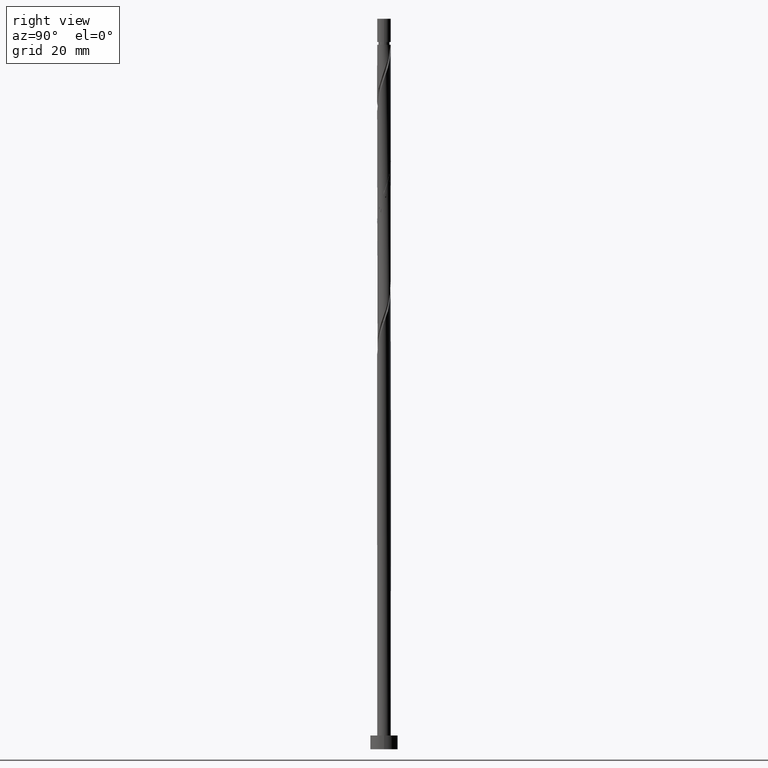
[diagram: clean part render]
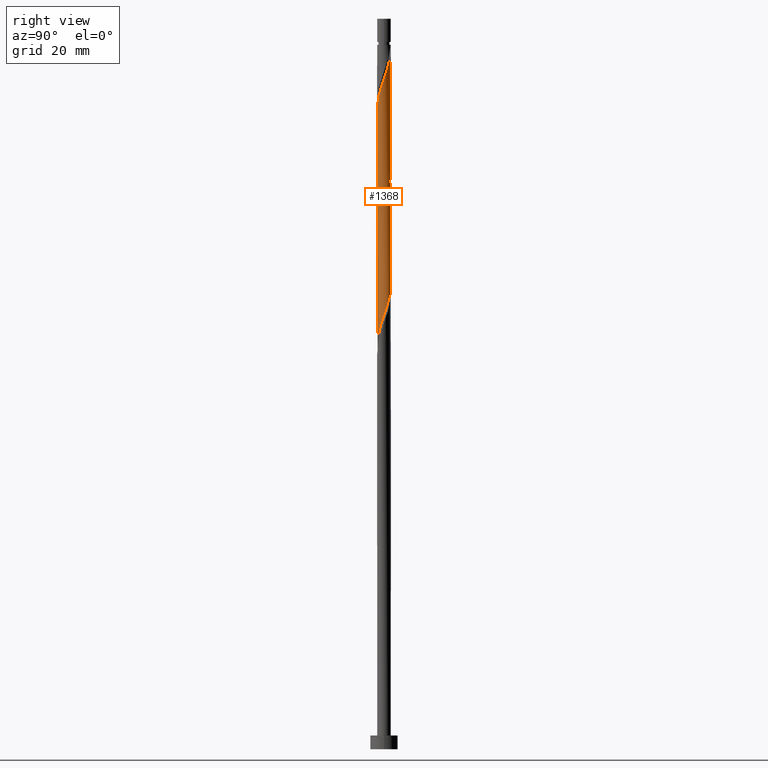
[diagram: same view with one face highlighted and labeled with its STEP entity id]
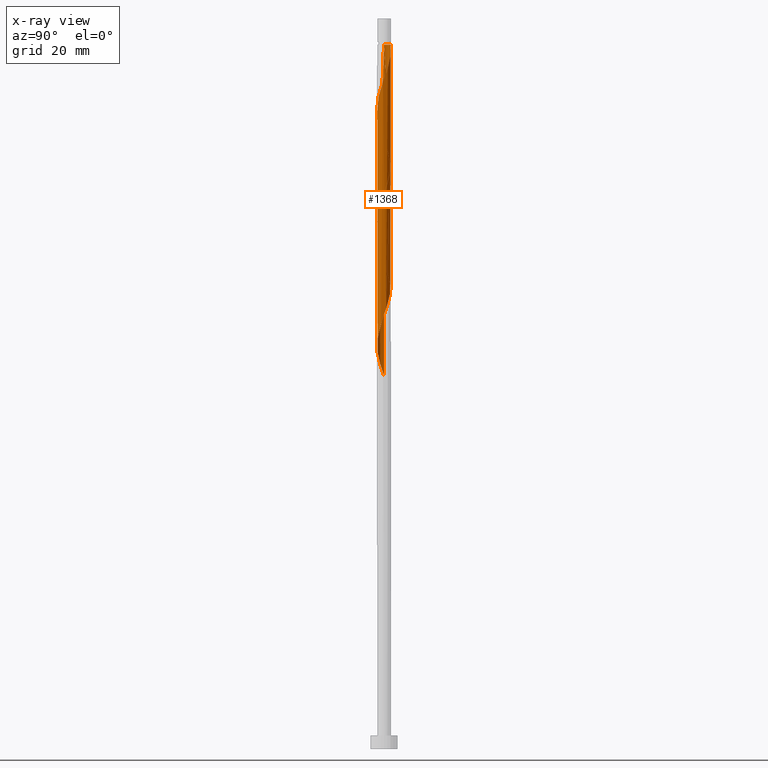
[diagram: x-ray of the same camera — body ghosted, the highlighted face saturated]
A machine part, right view. The second image highlights one B-rep face of the part: STEP entity #1368.
The next image is the same camera in x-ray: the body ghosted, the highlighted face saturated — about 0% of this face is hidden behind the body in this view.
In plain terms, the highlighted cylindrical surface (bore or boss wall) has radius 1.5 mm, axis along (-0, -0, -1).
Its self-contained STEP definition (entity closure, byte-faithful):
#6 = CARTESIAN_POINT ( 'NONE',  ( 1.306425335299755464, -0.7370568792752213438, 144.6169680509343891 ) ) ;
#25 = CARTESIAN_POINT ( 'NONE',  ( -0.5436309926831534023, -1.398021939668451008, 138.5563619903283268 ) ) ;
#39 = CARTESIAN_POINT ( 'NONE',  ( 0.1277418221353521510, 1.494550777617658754, 153.1018165357828309 ) ) ;
#44 = CARTESIAN_POINT ( 'NONE',  ( 0.000000000000000000, 0.000000000000000000, 160.0000000000000000 ) ) ;
#52 = CARTESIAN_POINT ( 'NONE',  ( 0.3426257832300796946, 1.476184276359228109, 152.4957559297222360 ) ) ;
#58 = FACE_OUTER_BOUND ( 'NONE', #276, .T. ) ;
#60 = CARTESIAN_POINT ( 'NONE',  ( -1.485116343010913109, 0.3015657354974668469, 134.3139377479041343 ) ) ;
#64 = VECTOR ( 'NONE', #248, 1000.000000000000000 ) ;
#86 = VECTOR ( 'NONE', #1399, 1000.000000000000000 ) ;
#89 = CARTESIAN_POINT ( 'NONE',  ( -0.08714213895937615584, -1.512917278876086735, 114.9199983539646723 ) ) ;
#96 = CARTESIAN_POINT ( 'NONE',  ( 0.8912534666523063143, 1.225634408494018723, 99.16242259638896428 ) ) ;
#100 = DIRECTION ( 'NONE',  ( -1.000000000000000000, 0.000000000000000000, 0.000000000000000000 ) ) ;
#107 = CARTESIAN_POINT ( 'NONE',  ( -0.9154784133017651593, 1.188233678523918035, 104.6169680509343465 ) ) ;
#132 = CARTESIAN_POINT ( 'NONE',  ( 0.9154784133017650483, -1.188233678523918035, 91.28363471760103209 ) ) ;
#155 = CARTESIAN_POINT ( 'NONE',  ( 0.7005518949784523830, -1.326358564808968632, 142.1927256266919528 ) ) ;
#163 = CARTESIAN_POINT ( 'NONE',  ( 0.08714213895937576726, 1.512917278876086069, 128.2533316872980151 ) ) ;
#166 = ORIENTED_EDGE ( 'NONE', *, *, #981, .T. ) ;
#170 = CARTESIAN_POINT ( 'NONE',  ( -1.500000000000000000, -3.440068761804149870E-16, 135.1633922272049517 ) ) ;
#183 = CARTESIAN_POINT ( 'NONE',  ( -0.2984962311320397688, 1.470000000000533991, 154.3139377479040775 ) ) ;
#197 = CARTESIAN_POINT ( 'NONE',  ( 0.7446362021362249450, -1.319859602977671020, 90.67757411154046565 ) ) ;
#201 = CARTESIAN_POINT ( 'NONE',  ( -1.306425335299753243, -0.7370568792752196785, 110.6775741115404372 ) ) ;
#221 = CARTESIAN_POINT ( 'NONE',  ( 1.497517962423704718, -0.08625515763335836472, 94.91999835396468654 ) ) ;
#224 = CARTESIAN_POINT ( 'NONE',  ( -1.500000000000000222, -0.1717933910776853201, 82.31601884684295101 ) ) ;
#228 = ORIENTED_EDGE ( 'NONE', *, *, #820, .T. ) ;
#229 = CARTESIAN_POINT ( 'NONE',  ( 1.485116343010913109, -0.3015657354974669579, 120.9806044145707773 ) ) ;
#236 = VERTEX_POINT ( 'NONE', #1483 ) ;
#248 = DIRECTION ( 'NONE',  ( -0.000000000000000000, -0.000000000000000000, -1.000000000000000000 ) ) ;
#250 = CARTESIAN_POINT ( 'NONE',  ( 0.5098503233045976746, -1.427082721123916320, 141.5866650206313579 ) ) ;
#255 = CARTESIAN_POINT ( 'NONE',  ( -1.500000000000002442, 7.702762662300539942E-16, 133.4644832686032032 ) ) ;
#261 = CARTESIAN_POINT ( 'NONE',  ( -1.086320624467308038, -1.056607754070166383, 136.7381801721464853 ) ) ;
#272 = CARTESIAN_POINT ( 'NONE',  ( -0.08714213895938177634, 1.512917278876088512, 153.7078771418435110 ) ) ;
#276 = EDGE_LOOP ( 'NONE', ( #453, #570, #1027, #166, #1296, #1345, #228, #1337 ) ) ;
#289 = CARTESIAN_POINT ( 'NONE',  ( -1.339997810401561518, 0.7077558288161657218, 133.1018165357828877 ) ) ;
#296 = CARTESIAN_POINT ( 'NONE',  ( -1.086320624467306040, 1.056607754070165717, 131.8896953236616696 ) ) ;
#323 = VERTEX_POINT ( 'NONE', #752 ) ;
#324 = CARTESIAN_POINT ( 'NONE',  ( -1.412557076706236980, 0.5046607821568160901, 107.0412104751767828 ) ) ;
#334 = CARTESIAN_POINT ( 'NONE',  ( 0.2984962311319868666, 1.469999999999999751, 100.9806044145707347 ) ) ;
#342 = CARTESIAN_POINT ( 'NONE',  ( 1.086320624467306484, -1.056607754070165273, 91.88969532366166959 ) ) ;
#349 = EDGE_CURVE ( 'NONE', #414, #996, #1243, .T. ) ;
#353 = CARTESIAN_POINT ( 'NONE',  ( 1.412557076706236980, -0.5046607821568163121, 120.3745438085101398 ) ) ;
#356 = CARTESIAN_POINT ( 'NONE',  ( 0.5436309926831520700, -1.398021939668448566, 90.07151350547979973 ) ) ;
#359 = CARTESIAN_POINT ( 'NONE',  ( 1.412557076706239645, 0.5046607821568165342, 148.2533316872980436 ) ) ;
#387 = CARTESIAN_POINT ( 'NONE',  ( 1.045853010636306202, -1.075263446855226235, 143.4048468388131994 ) ) ;
#401 = CARTESIAN_POINT ( 'NONE',  ( -0.7446362021362251671, 1.319859602977671020, 130.6775741115404514 ) ) ;
#414 = VERTEX_POINT ( 'NONE', #530 ) ;
#422 = DIRECTION ( 'NONE',  ( -0.000000000000000000, -0.000000000000000000, -1.000000000000000000 ) ) ;
#425 = CARTESIAN_POINT ( 'NONE',  ( 1.045853010636304870, 1.075263446855224236, 125.2230286569949698 ) ) ;
#437 = CARTESIAN_POINT ( 'NONE',  ( 0.7446362021362249450, -1.319859602977671020, 117.3442407782070944 ) ) ;
#445 = CARTESIAN_POINT ( 'NONE',  ( -0.2984962311319866446, -1.469999999999999751, 114.3139377479040633 ) ) ;
#453 = ORIENTED_EDGE ( 'NONE', *, *, #1319, .F. ) ;
#456 = CARTESIAN_POINT ( 'NONE',  ( -0.3426257832300788064, 1.476184276359225889, 102.7987862327525761 ) ) ;
#466 = CARTESIAN_POINT ( 'NONE',  ( 1.213159217434433890, -0.8821817914431652197, 92.49575592972223603 ) ) ;
#474 = CARTESIAN_POINT ( 'NONE',  ( 1.200452554620303536, 0.9248924852164295274, 97.95030138426773192 ) ) ;
#477 = CARTESIAN_POINT ( 'NONE',  ( -1.500000000000000222, 0.000000000000000000, 160.0000000000000000 ) ) ;
#479 = EDGE_CURVE ( 'NONE', #1388, #1182, #496, .T. ) ;
#481 = CARTESIAN_POINT ( 'NONE',  ( 1.461158848907852859, -0.3391383467823813058, 145.8290892630556357 ) ) ;
#496 =( BOUNDED_CURVE ( )  B_SPLINE_CURVE ( 2, ( #170, #1342, #1491, #60, #1497, #289, #1122, #296, #522, #401, #750, #999, #1482, #163, #767, #880, #891, #1370, #425, #1349, #897, #640, #1008, #648, #538 ),
 .UNSPECIFIED., .F., .T. ) 
 B_SPLINE_CURVE_WITH_KNOTS ( ( 3, 2, 2, 2, 2, 2, 2, 2, 2, 2, 2, 2, 3 ),
 ( 0.4295252162417516617, 0.4318181818181818232, 0.4431818181818181768, 0.4545454545454545303, 0.4659090909090908839, 0.4772727272727272929, 0.4886363636363636465, 0.5000000000000000000, 0.5113636363636363535, 0.5227272727272727071, 0.5340909090909090606, 0.5454545454545454142, 0.5545252162417515507 ),
 .UNSPECIFIED. ) 
 CURVE ( )  GEOMETRIC_REPRESENTATION_ITEM ( )  RATIONAL_B_SPLINE_CURVE ( ( 0.9061101570135673411, 0.9072237824201495604, 0.9090909090909268242, 0.8998376744372288405, 0.9090909090909268242, 0.8998376744372288405, 0.9090909090909268242, 0.8998376744372288405, 0.9090909090909268242, 0.8998376744372288405, 0.9090909090909268242, 0.8998376744372288405, 0.9090909090909268242, 0.8998376744372288405, 0.9090909090909268242, 0.8998376744372288405, 0.9090909090909268242, 0.8998376744372288405, 0.9090909090909268242, 0.8998376744372288405, 0.9090909090909268242, 0.8998376744372288405, 0.9090909090909268242, 0.9017048011080062153, 0.9061101570135673411 ) ) 
 REPRESENTATION_ITEM ( '' )  );
#500 = CARTESIAN_POINT ( 'NONE',  ( -0.1277418221353519845, -1.494550777617658754, 139.7684832024494881 ) ) ;
#510 = CARTESIAN_POINT ( 'NONE',  ( -1.500000000000002442, -0.04316328978573490127, 133.5865812733214000 ) ) ;
#522 = CARTESIAN_POINT ( 'NONE',  ( -0.9154784133017651593, 1.188233678523918035, 131.2836347176010463 ) ) ;
#530 = CARTESIAN_POINT ( 'NONE',  ( -1.500000000000002442, 7.702762662300539942E-16, 133.4644832686032032 ) ) ;
#538 = CARTESIAN_POINT ( 'NONE',  ( 1.499999999999999778, 2.131346950248223336E-15, 121.8300588938716089 ) ) ;
#564 = CARTESIAN_POINT ( 'NONE',  ( -1.200452554620303758, -0.9248924852164293053, 111.2836347176010605 ) ) ;
#570 = ORIENTED_EDGE ( 'NONE', *, *, #1211, .T. ) ;
#579 = CARTESIAN_POINT ( 'NONE',  ( 1.339997810401561518, -0.7077558288161656108, 93.10181653578287353 ) ) ;
#585 = AXIS2_PLACEMENT_3D ( 'NONE', #687, #1170, #100 ) ;
#589 = CARTESIAN_POINT ( 'NONE',  ( -0.5098503233045974525, -1.427082721123913878, 113.7078771418434968 ) ) ;
#593 = LINE ( 'NONE', #477, #1110 ) ;
#640 = CARTESIAN_POINT ( 'NONE',  ( 1.412398115979204061, 0.5492212733340094966, 123.4048468388131568 ) ) ;
#648 = CARTESIAN_POINT ( 'NONE',  ( 1.500000000000001332, 0.1717933910776786310, 122.3160188468429226 ) ) ;
#671 = CARTESIAN_POINT ( 'NONE',  ( -1.461158848907849972, -0.3391383467823803621, 82.79878623275254768 ) ) ;
#679 = CARTESIAN_POINT ( 'NONE',  ( 1.499999999999999778, 2.131346950248223336E-15, 121.8300588938716089 ) ) ;
#683 = CARTESIAN_POINT ( 'NONE',  ( 1.213159217434433890, -0.8821817914431652197, 119.1624225963889074 ) ) ;
#687 = CARTESIAN_POINT ( 'NONE',  ( 0.000000000000000000, 0.000000000000000000, 154.3139377479040775 ) ) ;
#692 = CARTESIAN_POINT ( 'NONE',  ( 1.412557076706236980, -0.5046607821568163121, 93.70787714184346839 ) ) ;
#703 = CARTESIAN_POINT ( 'NONE',  ( -1.045853010636305314, -1.075263446855223792, 111.8896953236616554 ) ) ;
#720 = CARTESIAN_POINT ( 'NONE',  ( -0.2984962311320397688, 1.470000000000533991, 154.3139377479040775 ) ) ;
#723 = CARTESIAN_POINT ( 'NONE',  ( 1.412398115979206503, -0.5492212733340109398, 145.2230286569949840 ) ) ;
#728 = CARTESIAN_POINT ( 'NONE',  ( -1.497517962423707383, -0.08625515763335786512, 133.7078771418434826 ) ) ;
#735 = CARTESIAN_POINT ( 'NONE',  ( 0.2984962311319867556, -1.470000000000002416, 140.9806044145707915 ) ) ;
#747 =( BOUNDED_CURVE ( )  B_SPLINE_CURVE ( 2, ( #1436, #1186, #796, #229, #353, #1273, #683, #1290, #1507, #437, #916, #1389, #1535, #89, #445, #589, #804, #932, #703, #564, #201, #1044, #1298, #1516, #924, #1396, #324, #1183, #1525, #1425, #107, #1071, #945, #456, #1062, #1281, #334, #1543, #1166, #96, #1053, #474, #1405, #1416, #832, #814, #221, #953, #692, #579, #466, #342, #132, #197, #356, #920, #1066, #1153, #1301, #1162, #1400, #809, #800, #1269, #1041, #1293, #671, #224, #827 ),
 .UNSPECIFIED., .F., .T. ) 
 B_SPLINE_CURVE_WITH_KNOTS ( ( 3, 2, 2, 2, 2, 2, 2, 2, 2, 2, 2, 2, 2, 2, 2, 2, 2, 2, 2, 2, 2, 2, 2, 2, 2, 2, 2, 2, 2, 2, 2, 2, 2, 2, 3 ),
 ( 0.5545252162417515507, 0.5568181818181817677, 0.5681818181818182323, 0.5795454545454545858, 0.5909090909090909394, 0.6022727272727272929, 0.6136363636363636465, 0.6250000000000000000, 0.6363636363636363535, 0.6477272727272727071, 0.6590909090909090606, 0.6704545454545454142, 0.6818181818181817677, 0.6931818181818182323, 0.7045454545454545858, 0.7159090909090909394, 0.7272727272727272929, 0.7386363636363636465, 0.7500000000000000000, 0.7613636363636363535, 0.7727272727272727071, 0.7840909090909090606, 0.7954545454545454142, 0.8068181818181817677, 0.8181818181818182323, 0.8295454545454545858, 0.8409090909090909394, 0.8522727272727272929, 0.8636363636363636465, 0.8750000000000000000, 0.8863636363636363535, 0.8977272727272727071, 0.9090909090909090606, 0.9204545454545454142, 0.9295252162417512176 ),
 .UNSPECIFIED. ) 
 CURVE ( )  GEOMETRIC_REPRESENTATION_ITEM ( )  RATIONAL_B_SPLINE_CURVE ( ( 0.9061101570135673411, 0.9072237824201494494, 0.9090909090909268242, 0.8998376744372288405, 0.9090909090909268242, 0.8998376744372288405, 0.9090909090909268242, 0.8998376744372288405, 0.9090909090909268242, 0.8998376744372288405, 0.9090909090909268242, 0.8998376744372288405, 0.9090909090909268242, 0.8998376744372288405, 0.9090909090909268242, 0.8998376744372288405, 0.9090909090909268242, 0.8998376744372288405, 0.9090909090909268242, 0.8998376744372288405, 0.9090909090909268242, 0.8998376744372288405, 0.9090909090909268242, 0.8998376744372288405, 0.9090909090909268242, 0.8998376744372288405, 0.9090909090909268242, 0.8998376744372288405, 0.9090909090909268242, 0.8998376744372288405, 0.9090909090909268242, 0.8998376744372288405, 0.9090909090909268242, 0.8998376744372288405, 0.9090909090909268242, 0.8998376744372288405, 0.9090909090909268242, 0.8998376744372288405, 0.9090909090909268242, 0.8998376744372288405, 0.9090909090909268242, 0.8998376744372288405, 0.9090909090909268242, 0.8998376744372288405, 0.9090909090909268242, 0.8998376744372288405, 0.9090909090909268242, 0.8998376744372288405, 0.9090909090909268242, 0.8998376744372288405, 0.9090909090909268242, 0.8998376744372288405, 0.9090909090909268242, 0.8998376744372288405, 0.9090909090909268242, 0.8998376744372288405, 0.9090909090909268242, 0.8998376744372288405, 0.9090909090909268242, 0.8998376744372288405, 0.9090909090909268242, 0.8998376744372288405, 0.9090909090909268242, 0.8998376744372288405, 0.9090909090909268242, 0.8998376744372288405, 0.9090909090909268242, 0.9017048011080064374, 0.9061101570135670080 ) ) 
 REPRESENTATION_ITEM ( '' )  );
#750 = CARTESIAN_POINT ( 'NONE',  ( -0.5436309926831520700, 1.398021939668448566, 130.0715135054798282 ) ) ;
#752 = CARTESIAN_POINT ( 'NONE',  ( 1.500000000000000222, 1.836970198721030181E-16, 154.3139377479040775 ) ) ;
#759 = CARTESIAN_POINT ( 'NONE',  ( 1.339997810401563738, 0.7077558288161661659, 148.8593922933585532 ) ) ;
#764 = DIRECTION ( 'NONE',  ( -1.000000000000000000, 0.000000000000000000, 0.000000000000000000 ) ) ;
#767 = CARTESIAN_POINT ( 'NONE',  ( 0.2984962311319868666, 1.469999999999999751, 127.6472710812373776 ) ) ;
#796 = CARTESIAN_POINT ( 'NONE',  ( 1.497517962423704718, -0.08625515763335836472, 121.5866650206313437 ) ) ;
#800 = CARTESIAN_POINT ( 'NONE',  ( -1.045853010636305314, -1.075263446855223792, 85.22302865699496977 ) ) ;
#803 = VERTEX_POINT ( 'NONE', #1047 ) ;
#804 = CARTESIAN_POINT ( 'NONE',  ( -0.7005518949784516058, -1.326358564808965745, 113.1018165357828167 ) ) ;
#809 = CARTESIAN_POINT ( 'NONE',  ( -0.8912534666523063143, -1.225634408494019167, 85.82908926305560726 ) ) ;
#814 = CARTESIAN_POINT ( 'NONE',  ( 1.509919581836496993, 0.1290554202307504228, 95.52605896002533825 ) ) ;
#820 = EDGE_CURVE ( 'NONE', #323, #1182, #927, .T. ) ;
#827 = CARTESIAN_POINT ( 'NONE',  ( -1.500000000000000444, 1.757426432660816093E-15, 81.83005889387165155 ) ) ;
#832 = CARTESIAN_POINT ( 'NONE',  ( 1.461158848907850416, 0.3391383467823799180, 96.13211956608589048 ) ) ;
#843 = CARTESIAN_POINT ( 'NONE',  ( -1.213159217434436110, -0.8821817914431666630, 136.1321195660859189 ) ) ;
#864 = CARTESIAN_POINT ( 'NONE',  ( 1.200452554620305756, -0.9248924852164310817, 144.0109074448737658 ) ) ;
#870 = CYLINDRICAL_SURFACE ( 'NONE', #1159, 1.500000000000000222 ) ;
#880 = CARTESIAN_POINT ( 'NONE',  ( 0.5098503233045974525, 1.427082721123913878, 127.0412104751767828 ) ) ;
#891 = CARTESIAN_POINT ( 'NONE',  ( 0.7005518949784517169, 1.326358564808965745, 126.4351498691161595 ) ) ;
#897 = CARTESIAN_POINT ( 'NONE',  ( 1.306425335299753243, 0.7370568792752199005, 124.0109074448737516 ) ) ;
#909 = CIRCLE ( 'NONE', #585, 1.499999999999993561 ) ;
#916 = CARTESIAN_POINT ( 'NONE',  ( 0.5436309926831520700, -1.398021939668448566, 116.7381801721464996 ) ) ;
#920 = CARTESIAN_POINT ( 'NONE',  ( 0.3426257832300790840, -1.476184276359225667, 89.46545289941923329 ) ) ;
#924 = CARTESIAN_POINT ( 'NONE',  ( -1.497517962423704718, 0.08625515763335817043, 108.2533316872980009 ) ) ;
#927 = LINE ( 'NONE', #1519, #86 ) ;
#932 = CARTESIAN_POINT ( 'NONE',  ( -0.8912534666523063143, -1.225634408494019167, 112.4957559297222929 ) ) ;
#945 = CARTESIAN_POINT ( 'NONE',  ( -0.5436309926831520700, 1.398021939668448566, 103.4048468388131852 ) ) ;
#953 = CARTESIAN_POINT ( 'NONE',  ( 1.485116343010913109, -0.3015657354974669579, 94.31393774790410589 ) ) ;
#955 = CARTESIAN_POINT ( 'NONE',  ( -1.500000000000000222, 0.000000000000000000, 160.0000000000000000 ) ) ;
#956 = DIRECTION ( 'NONE',  ( -0.000000000000000000, -0.000000000000000000, -1.000000000000000000 ) ) ;
#959 = CARTESIAN_POINT ( 'NONE',  ( 1.497517962423707383, 0.08625515763335768471, 147.0412104751768254 ) ) ;
#981 = EDGE_CURVE ( 'NONE', #414, #803, #1080, .T. ) ;
#984 = CARTESIAN_POINT ( 'NONE',  ( -1.485116343010915330, -0.3015657354974669024, 134.3139377479041059 ) ) ;
#996 = VERTEX_POINT ( 'NONE', #720 ) ;
#999 = CARTESIAN_POINT ( 'NONE',  ( -0.3426257832300788064, 1.476184276359225889, 129.4654528994192333 ) ) ;
#1008 = CARTESIAN_POINT ( 'NONE',  ( 1.461158848907850416, 0.3391383467823799180, 122.7987862327525477 ) ) ;
#1015 = CARTESIAN_POINT ( 'NONE',  ( -1.500000000000000000, -3.440068761804149870E-16, 135.1633922272049517 ) ) ;
#1024 = CARTESIAN_POINT ( 'NONE',  ( 0.7446362021362260553, 1.319859602977673019, 151.2836347176010179 ) ) ;
#1027 = ORIENTED_EDGE ( 'NONE', *, *, #349, .F. ) ;
#1029 = EDGE_CURVE ( 'NONE', #1182, #803, #747, .T. ) ;
#1041 = CARTESIAN_POINT ( 'NONE',  ( -1.306425335299753243, -0.7370568792752196785, 84.01090744487376583 ) ) ;
#1044 = CARTESIAN_POINT ( 'NONE',  ( -1.412398115979203617, -0.5492212733340102737, 110.0715135054798282 ) ) ;
#1047 = CARTESIAN_POINT ( 'NONE',  ( -1.500000000000000444, 1.757426432660816093E-15, 81.83005889387165155 ) ) ;
#1053 = CARTESIAN_POINT ( 'NONE',  ( 1.045853010636304870, 1.075263446855224236, 98.55636199032831257 ) ) ;
#1062 = CARTESIAN_POINT ( 'NONE',  ( -0.1277418221353515404, 1.494550777617655868, 102.1927256266919386 ) ) ;
#1066 = CARTESIAN_POINT ( 'NONE',  ( 0.1277418221353510408, -1.494550777617655868, 88.85939229335861000 ) ) ;
#1071 = CARTESIAN_POINT ( 'NONE',  ( -0.7446362021362251671, 1.319859602977671020, 104.0109074448738085 ) ) ;
#1080 = LINE ( 'NONE', #955, #64 ) ;
#1095 = CARTESIAN_POINT ( 'NONE',  ( -0.7446362021362263883, -1.319859602977673019, 137.9503013842677319 ) ) ;
#1110 = VECTOR ( 'NONE', #956, 1000.000000000000000 ) ;
#1122 = CARTESIAN_POINT ( 'NONE',  ( -1.213159217434433668, 0.8821817914431653307, 132.4957559297222360 ) ) ;
#1130 = CARTESIAN_POINT ( 'NONE',  ( 0.9154784133017670467, 1.188233678523920034, 150.6775741115404799 ) ) ;
#1153 = CARTESIAN_POINT ( 'NONE',  ( -0.08714213895937615584, -1.512917278876086735, 88.25333168729805777 ) ) ;
#1159 = AXIS2_PLACEMENT_3D ( 'NONE', #44, #422, #764 ) ;
#1162 = CARTESIAN_POINT ( 'NONE',  ( -0.5098503233045974525, -1.427082721123913878, 87.04121047517682541 ) ) ;
#1166 = CARTESIAN_POINT ( 'NONE',  ( 0.7005518949784517169, 1.326358564808965745, 99.76848320244951651 ) ) ;
#1170 = DIRECTION ( 'NONE',  ( -0.000000000000000000, -0.000000000000000000, -1.000000000000000000 ) ) ;
#1182 = VERTEX_POINT ( 'NONE', #679 ) ;
#1183 = CARTESIAN_POINT ( 'NONE',  ( -1.339997810401561518, 0.7077558288161657218, 106.4351498691162163 ) ) ;
#1186 = CARTESIAN_POINT ( 'NONE',  ( 1.499999999999999778, -0.04316328978573928665, 121.7079608891533979 ) ) ;
#1204 = CARTESIAN_POINT ( 'NONE',  ( 1.509919581836498992, -0.1290554202307514498, 146.4351498691162021 ) ) ;
#1210 = CARTESIAN_POINT ( 'NONE',  ( -1.412557076706239645, -0.5046607821568167562, 134.9199983539647008 ) ) ;
#1211 = EDGE_CURVE ( 'NONE', #236, #996, #909, .T. ) ;
#1218 = CARTESIAN_POINT ( 'NONE',  ( 0.8912534666523075355, -1.225634408494020722, 142.7987862327525761 ) ) ;
#1241 = CARTESIAN_POINT ( 'NONE',  ( 1.086320624467308482, 1.056607754070166161, 150.0715135054798282 ) ) ;
#1243 =( BOUNDED_CURVE ( )  B_SPLINE_CURVE ( 2, ( #255, #510, #728, #984, #1210, #1459, #843, #261, #1315, #1095, #25, #1335, #500, #1329, #735, #250, #155, #1218, #387, #864, #6, #723, #481, #1204, #959, #1430, #359, #759, #1255, #1241, #1130, #1024, #1359, #52, #39, #272, #183 ),
 .UNSPECIFIED., .F., .T. ) 
 B_SPLINE_CURVE_WITH_KNOTS ( ( 3, 2, 2, 2, 2, 2, 2, 2, 2, 2, 2, 2, 2, 2, 2, 2, 2, 2, 3 ),
 ( 0.5545252162417514397, 0.5568181818181818787, 0.5681818181818181213, 0.5795454545454545858, 0.5909090909090909394, 0.6022727272727274039, 0.6136363636363637575, 0.6250000000000001110, 0.6363636363636364646, 0.6477272727272729291, 0.6590909090909093937, 0.6704545454545456362, 0.6818181818181821008, 0.6931818181818183433, 0.7045454545454548079, 0.7159090909090910504, 0.7272727272727276260, 0.7386363636363639795, 0.7500000000000003331 ),
 .UNSPECIFIED. ) 
 CURVE ( )  GEOMETRIC_REPRESENTATION_ITEM ( )  RATIONAL_B_SPLINE_CURVE ( ( 0.9061101570135737804, 0.9072237824201559997, 0.9090909090909334855, 0.8998376744372357239, 0.9090909090909334855, 0.8998376744372357239, 0.9090909090909334855, 0.8998376744372357239, 0.9090909090909334855, 0.8998376744372357239, 0.9090909090909334855, 0.8998376744372357239, 0.9090909090909334855, 0.8998376744372357239, 0.9090909090909334855, 0.8998376744372357239, 0.9090909090909334855, 0.8998376744372357239, 0.9090909090909334855, 0.8998376744372357239, 0.9090909090909334855, 0.8998376744372357239, 0.9090909090909334855, 0.8998376744372357239, 0.9090909090909334855, 0.8998376744372357239, 0.9090909090909334855, 0.8998376744372357239, 0.9090909090909334855, 0.8998376744372357239, 0.9090909090909334855, 0.8998376744372357239, 0.9090909090909334855, 0.8998376744372357239, 0.9090909090909334855, 0.8998376744372355018, 0.9090909090909337076 ) ) 
 REPRESENTATION_ITEM ( '' )  );
#1255 = CARTESIAN_POINT ( 'NONE',  ( 1.213159217434436110, 0.8821817914431661078, 149.4654528994192617 ) ) ;
#1269 = CARTESIAN_POINT ( 'NONE',  ( -1.200452554620303758, -0.9248924852164293053, 84.61696805093438911 ) ) ;
#1273 = CARTESIAN_POINT ( 'NONE',  ( 1.339997810401561518, -0.7077558288161656108, 119.7684832024495591 ) ) ;
#1281 = CARTESIAN_POINT ( 'NONE',  ( 0.08714213895937576726, 1.512917278876086069, 101.5866650206313437 ) ) ;
#1290 = CARTESIAN_POINT ( 'NONE',  ( 1.086320624467306484, -1.056607754070165273, 118.5563619903283126 ) ) ;
#1293 = CARTESIAN_POINT ( 'NONE',  ( -1.412398115979203617, -0.5492212733340102737, 83.40484683881315675 ) ) ;
#1296 = ORIENTED_EDGE ( 'NONE', *, *, #1029, .F. ) ;
#1298 = CARTESIAN_POINT ( 'NONE',  ( -1.461158848907849972, -0.3391383467823803621, 109.4654528994192333 ) ) ;
#1301 = CARTESIAN_POINT ( 'NONE',  ( -0.2984962311319866446, -1.469999999999999751, 87.64727108123737764 ) ) ;
#1315 = CARTESIAN_POINT ( 'NONE',  ( -0.9154784133017672687, -1.188233678523920034, 137.3442407782071371 ) ) ;
#1319 = EDGE_CURVE ( 'NONE', #236, #1388, #593, .T. ) ;
#1329 = CARTESIAN_POINT ( 'NONE',  ( 0.08714213895937560073, -1.512917278876088512, 140.3745438085101398 ) ) ;
#1335 = CARTESIAN_POINT ( 'NONE',  ( -0.3426257832300795281, -1.476184276359228109, 139.1624225963889785 ) ) ;
#1337 = ORIENTED_EDGE ( 'NONE', *, *, #479, .F. ) ;
#1342 = CARTESIAN_POINT ( 'NONE',  ( -1.499999999999999112, 0.04316328978574007075, 135.0412942224866981 ) ) ;
#1345 = ORIENTED_EDGE ( 'NONE', *, *, #820, .F. ) ;
#1349 = CARTESIAN_POINT ( 'NONE',  ( 1.200452554620303536, 0.9248924852164295274, 124.6169680509343749 ) ) ;
#1359 = CARTESIAN_POINT ( 'NONE',  ( 0.5436309926831531802, 1.398021939668451008, 151.8896953236616696 ) ) ;
#1368 = ADVANCED_FACE ( 'NONE', ( #58 ), #870, .T. ) ;
#1370 = CARTESIAN_POINT ( 'NONE',  ( 0.8912534666523063143, 1.225634408494018723, 125.8290892630555788 ) ) ;
#1388 = VERTEX_POINT ( 'NONE', #1015 ) ;
#1389 = CARTESIAN_POINT ( 'NONE',  ( 0.3426257832300790840, -1.476184276359225667, 116.1321195660859189 ) ) ;
#1396 = CARTESIAN_POINT ( 'NONE',  ( -1.485116343010913109, 0.3015657354974668469, 107.6472710812374487 ) ) ;
#1399 = DIRECTION ( 'NONE',  ( -0.000000000000000000, -0.000000000000000000, -1.000000000000000000 ) ) ;
#1400 = CARTESIAN_POINT ( 'NONE',  ( -0.7005518949784516058, -1.326358564808965745, 86.43514986911621634 ) ) ;
#1405 = CARTESIAN_POINT ( 'NONE',  ( 1.306425335299753243, 0.7370568792752199005, 97.34424077820709442 ) ) ;
#1416 = CARTESIAN_POINT ( 'NONE',  ( 1.412398115979204061, 0.5492212733340094966, 96.73818017214652798 ) ) ;
#1425 = CARTESIAN_POINT ( 'NONE',  ( -1.086320624467306040, 1.056607754070165717, 105.2230286569950124 ) ) ;
#1430 = CARTESIAN_POINT ( 'NONE',  ( 1.485116343010915330, 0.3015657354974667359, 147.6472710812373350 ) ) ;
#1436 = CARTESIAN_POINT ( 'NONE',  ( 1.499999999999999778, 2.131346950248223336E-15, 121.8300588938716089 ) ) ;
#1459 = CARTESIAN_POINT ( 'NONE',  ( -1.339997810401563294, -0.7077558288161666100, 135.5260589600252956 ) ) ;
#1482 = CARTESIAN_POINT ( 'NONE',  ( -0.1277418221353515404, 1.494550777617655868, 128.8593922933586384 ) ) ;
#1483 = CARTESIAN_POINT ( 'NONE',  ( -1.499999999999993561, 0.000000000000000000, 154.3139377479040775 ) ) ;
#1491 = CARTESIAN_POINT ( 'NONE',  ( -1.497517962423704718, 0.08625515763335817043, 134.9199983539646439 ) ) ;
#1497 = CARTESIAN_POINT ( 'NONE',  ( -1.412557076706236980, 0.5046607821568160901, 133.7078771418434258 ) ) ;
#1507 = CARTESIAN_POINT ( 'NONE',  ( 0.9154784133017650483, -1.188233678523918035, 117.9503013842676751 ) ) ;
#1516 = CARTESIAN_POINT ( 'NONE',  ( -1.509919581836496993, -0.1290554202307509224, 108.8593922933586242 ) ) ;
#1519 = CARTESIAN_POINT ( 'NONE',  ( 1.500000000000000222, 1.836970198721030181E-16, 160.0000000000000000 ) ) ;
#1525 = CARTESIAN_POINT ( 'NONE',  ( -1.213159217434433668, 0.8821817914431653307, 105.8290892630555931 ) ) ;
#1535 = CARTESIAN_POINT ( 'NONE',  ( 0.1277418221353510408, -1.494550777617655868, 115.5260589600252530 ) ) ;
#1543 = CARTESIAN_POINT ( 'NONE',  ( 0.5098503233045974525, 1.427082721123913878, 100.3745438085101398 ) ) ;